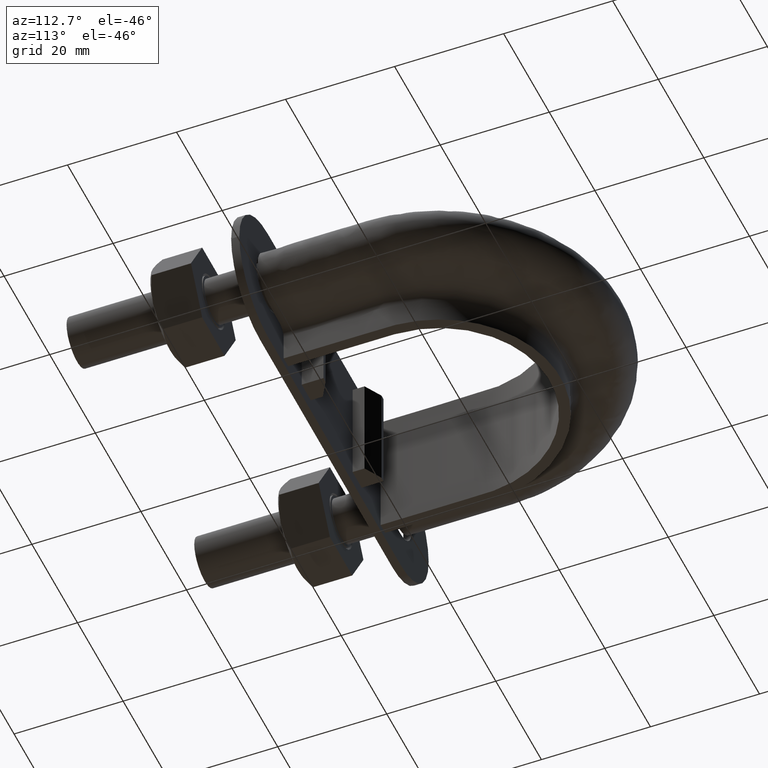
[diagram: clean part render]
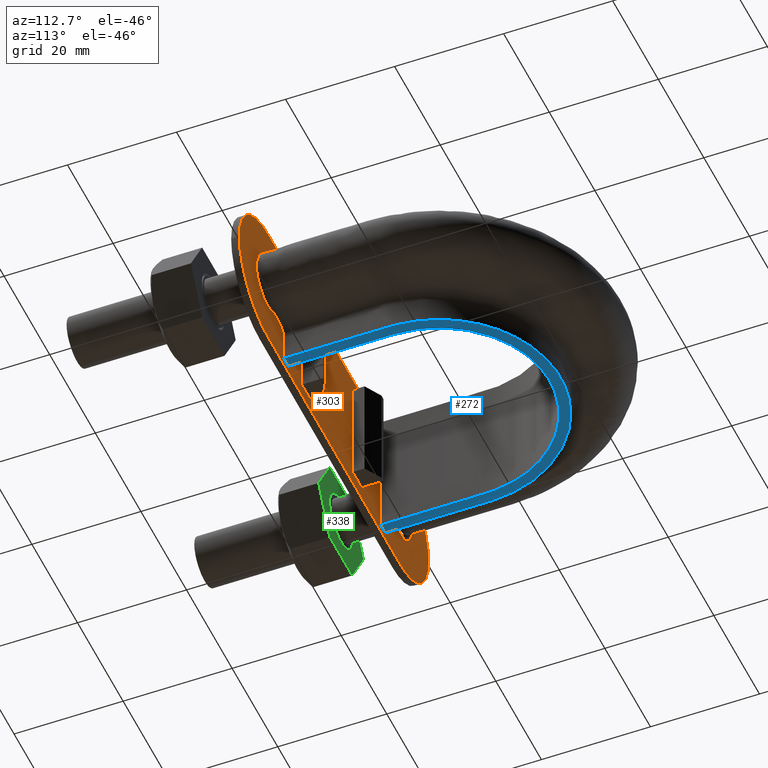
[diagram: same view with three faces highlighted in distinct colors, each labeled with its STEP entity id]
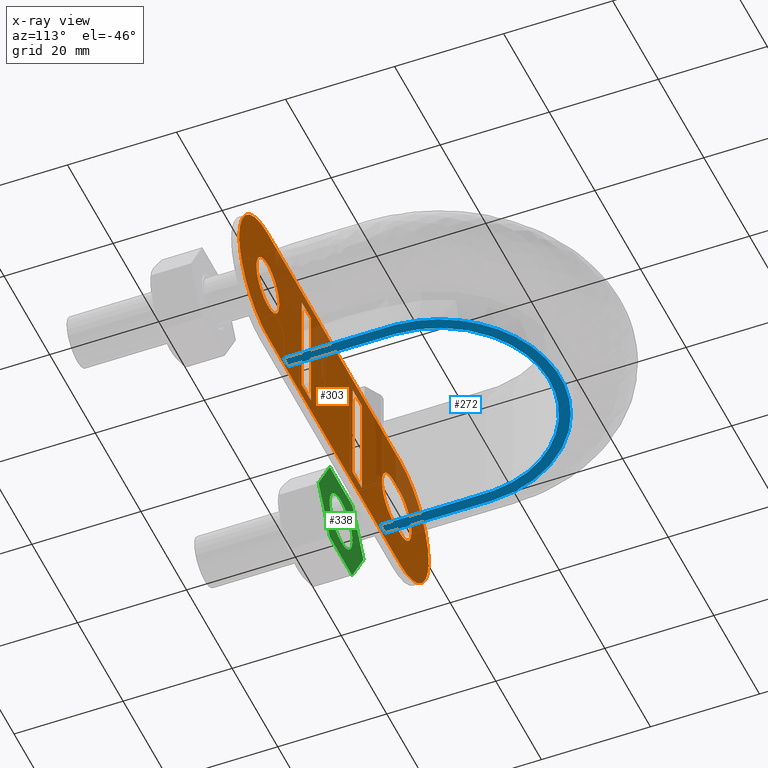
[diagram: x-ray of the same camera — body ghosted, the three highlighted faces saturated]
A machine part, auxiliary view with three faces highlighted in distinct colors.
The next image is the same camera in x-ray (body ghosted, the three faces saturated) — at least one of them is partly hidden behind the body in this view.
Their STEP definitions:

[orange] entity #303 — the highlighted planar face has unit normal (-0, 1, 0).
#303 = ADVANCED_FACE( '', ( #467, #468, #469, #470, #471 ), #472, .T. );
#467 = FACE_BOUND( '', #1549, .T. );
#468 = FACE_OUTER_BOUND( '', #1550, .T. );
#469 = FACE_BOUND( '', #1551, .T. );
#470 = FACE_BOUND( '', #1552, .T. );
#471 = FACE_BOUND( '', #1553, .T. );
#472 = PLANE( '', #1554 );
#1549 = EDGE_LOOP( '', ( #1969, #1970, #1971, #1972 ) );
#1550 = EDGE_LOOP( '', ( #1973, #1974, #1975, #1976, #1977, #1978 ) );
#1551 = EDGE_LOOP( '', ( #1979 ) );
#1552 = EDGE_LOOP( '', ( #1980, #1981, #1982, #1983 ) );
#1553 = EDGE_LOOP( '', ( #1984, #1985, #1986, #1987 ) );
#1554 = AXIS2_PLACEMENT_3D( '', #1988, #1989, #1990 );
#1969 = ORIENTED_EDGE( '', *, *, #2625, .T. );
#1970 = ORIENTED_EDGE( '', *, *, #2626, .T. );
#1971 = ORIENTED_EDGE( '', *, *, #2627, .F. );
#1972 = ORIENTED_EDGE( '', *, *, #2628, .F. );
#1973 = ORIENTED_EDGE( '', *, *, #2612, .T. );
#1974 = ORIENTED_EDGE( '', *, *, #2629, .T. );
#1975 = ORIENTED_EDGE( '', *, *, #2630, .T. );
#1976 = ORIENTED_EDGE( '', *, *, #2631, .T. );
#1977 = ORIENTED_EDGE( '', *, *, #2632, .T. );
#1978 = ORIENTED_EDGE( '', *, *, #2633, .T. );
#1979 = ORIENTED_EDGE( '', *, *, #2634, .F. );
#1980 = ORIENTED_EDGE( '', *, *, #2635, .F. );
#1981 = ORIENTED_EDGE( '', *, *, #2622, .F. );
#1982 = ORIENTED_EDGE( '', *, *, #2636, .F. );
#1983 = ORIENTED_EDGE( '', *, *, #2637, .F. );
#1984 = ORIENTED_EDGE( '', *, *, #2638, .F. );
#1985 = ORIENTED_EDGE( '', *, *, #2639, .T. );
#1986 = ORIENTED_EDGE( '', *, *, #2640, .T. );
#1987 = ORIENTED_EDGE( '', *, *, #2641, .F. );
#1988 = CARTESIAN_POINT( '', ( -29.9999999999918, 34.9999999999981, 3.52518625053271E-007 ) );
#1989 = DIRECTION( '', ( -5.80381248534074E-014, 1.00000000000000, 8.48069738959592E-014 ) );
#1990 = DIRECTION( '', ( 1.17504990182499E-008, -8.48069732139823E-014, 1.00000000000000 ) );
#2612 = EDGE_CURVE( '', #2901, #2902, #2903, .T. );
#2622 = EDGE_CURVE( '', #2917, #2918, #2919, .T. );
#2625 = EDGE_CURVE( '', #2922, #2923, #2924, .T. );
#2626 = EDGE_CURVE( '', #2923, #2925, #2926, .T. );
#2627 = EDGE_CURVE( '', #2927, #2925, #2928, .T. );
#2628 = EDGE_CURVE( '', #2922, #2927, #2929, .T. );
#2629 = EDGE_CURVE( '', #2902, #2930, #2931, .T. );
#2630 = EDGE_CURVE( '', #2930, #2932, #2933, .T. );
#2631 = EDGE_CURVE( '', #2932, #2934, #2935, .T. );
#2632 = EDGE_CURVE( '', #2934, #2936, #2937, .T. );
#2633 = EDGE_CURVE( '', #2936, #2901, #2938, .T. );
#2634 = EDGE_CURVE( '', #2939, #2939, #2940, .T. );
#2635 = EDGE_CURVE( '', #2918, #2941, #2942, .F. );
#2636 = EDGE_CURVE( '', #2943, #2917, #2944, .F. );
#2637 = EDGE_CURVE( '', #2941, #2943, #2945, .T. );
#2638 = EDGE_CURVE( '', #2946, #2947, #2948, .T. );
#2639 = EDGE_CURVE( '', #2946, #2949, #2950, .T. );
#2640 = EDGE_CURVE( '', #2949, #2951, #2952, .T. );
#2641 = EDGE_CURVE( '', #2947, #2951, #2953, .T. );
#2901 = VERTEX_POINT( '', #3549 );
#2902 = VERTEX_POINT( '', #3550 );
#2903 = CIRCLE( '', #3551, 12.5000000000000 );
#2917 = VERTEX_POINT( '', #3574 );
#2918 = VERTEX_POINT( '', #3575 );
#2919 = LINE( '', #3576, #3577 );
#2922 = VERTEX_POINT( '', #3582 );
#2923 = VERTEX_POINT( '', #3583 );
#2924 = LINE( '', #3584, #3585 );
#2925 = VERTEX_POINT( '', #3586 );
#2926 = LINE( '', #3587, #3588 );
#2927 = VERTEX_POINT( '', #3589 );
#2928 = LINE( '', #3590, #3591 );
#2929 = LINE( '', #3592, #3593 );
#2930 = VERTEX_POINT( '', #3594 );
#2931 = LINE( '', #3595, #3596 );
#2932 = VERTEX_POINT( '', #3597 );
#2933 = CIRCLE( '', #3598, 12.5000000000000 );
#2934 = VERTEX_POINT( '', #3599 );
#2935 = CIRCLE( '', #3600, 12.5000000000000 );
#2936 = VERTEX_POINT( '', #3601 );
#2937 = LINE( '', #3602, #3603 );
#2938 = CIRCLE( '', #3604, 12.5000000000000 );
#2939 = VERTEX_POINT( '', #3605 );
#2940 = CIRCLE( '', #3606, 4.99999999999999 );
#2941 = VERTEX_POINT( '', #3607 );
#2942 = CIRCLE( '', #3608, 4.99999999999999 );
#2943 = VERTEX_POINT( '', #3609 );
#2944 = CIRCLE( '', #3610, 4.99999999999999 );
#2945 = LINE( '', #3611, #3612 );
#2946 = VERTEX_POINT( '', #3613 );
#2947 = VERTEX_POINT( '', #3614 );
#2948 = LINE( '', #3615, #3616 );
#2949 = VERTEX_POINT( '', #3617 );
#2950 = LINE( '', #3618, #3619 );
#2951 = VERTEX_POINT( '', #3620 );
#2952 = LINE( '', #3621, #3622 );
#2953 = LINE( '', #3623, #3624 );
#3549 = CARTESIAN_POINT( '', ( -42.4999999999918, 34.9999999999974, 4.99399862781395E-007 ) );
#3550 = CARTESIAN_POINT( '', ( -29.9999998531106, 34.9999999999970, 12.5000003525186 ) );
#3551 = AXIS2_PLACEMENT_3D( '', #4162, #4163, #4164 );
#3574 = CARTESIAN_POINT( '', ( -27.0000000587443, 34.9999999999987, -4.99999968273288 ) );
#3575 = CARTESIAN_POINT( '', ( -30.0000000587443, 34.9999999999985, -4.99999964748139 ) );
#3576 = CARTESIAN_POINT( '', ( -30.0000000587443, 34.9999999999985, -4.99999964748139 ) );
#3577 = VECTOR( '', #4174, 1000.00000000000 );
#3582 = CARTESIAN_POINT( '', ( -13.1500001174968, 34.9999999999999, -9.99999984547729 ) );
#3583 = CARTESIAN_POINT( '', ( -9.15000011749677, 35.0000000000001, -9.99999989247929 ) );
#3584 = CARTESIAN_POINT( '', ( -13.1500001174968, 34.9999999999999, -9.99999984547729 ) );
#3585 = VECTOR( '', #4177, 999.999999999999 );
#3586 = CARTESIAN_POINT( '', ( -9.14999988248680, 34.9999999999985, 10.0000001075207 ) );
#3587 = CARTESIAN_POINT( '', ( -9.15000011749677, 35.0000000000001, -9.99999989247929 ) );
#3588 = VECTOR( '', #4178, 1000.00000000000 );
#3589 = CARTESIAN_POINT( '', ( -13.1499998824868, 34.9999999999982, 10.0000001545227 ) );
#3590 = CARTESIAN_POINT( '', ( -13.1499998824868, 34.9999999999982, 10.0000001545227 ) );
#3591 = VECTOR( '', #4179, 999.999999999999 );
#3592 = CARTESIAN_POINT( '', ( -13.1500001174968, 34.9999999999999, -9.99999984547729 ) );
#3593 = VECTOR( '', #4180, 1000.00000000000 );
#3594 = CARTESIAN_POINT( '', ( 28.0000001468894, 35.0000000000004, 12.4999996709897 ) );
#3595 = CARTESIAN_POINT( '', ( -29.9999998531106, 34.9999999999970, 12.5000003525186 ) );
#3596 = VECTOR( '', #4181, 999.999999999999 );
#3597 = CARTESIAN_POINT( '', ( 40.5000000000082, 35.0000000000022, -4.75891548794454E-007 ) );
#3598 = AXIS2_PLACEMENT_3D( '', #4182, #4183, #4184 );
#3599 = CARTESIAN_POINT( '', ( 27.9999998531269, 35.0000000000025, -12.5000003290103 ) );
#3600 = AXIS2_PLACEMENT_3D( '', #4185, #4186, #4187 );
#3601 = CARTESIAN_POINT( '', ( -30.0000001468730, 34.9999999999991, -12.4999996474814 ) );
#3602 = CARTESIAN_POINT( '', ( 27.9999998531269, 35.0000000000025, -12.5000003290103 ) );
#3603 = VECTOR( '', #4188, 999.999999999999 );
#3604 = AXIS2_PLACEMENT_3D( '', #4189, #4190, #4191 );
#3605 = CARTESIAN_POINT( '', ( 33.0000000000082, 35.0000100000017, -3.87762820034520E-007 ) );
#3606 = AXIS2_PLACEMENT_3D( '', #4192, #4193, #4194 );
#3607 = CARTESIAN_POINT( '', ( -29.9999999412393, 34.9999999999977, 5.00000035251861 ) );
#3608 = AXIS2_PLACEMENT_3D( '', #4195, #4196, #4197 );
#3609 = CARTESIAN_POINT( '', ( -26.9999999412393, 34.9999999999978, 5.00000031726712 ) );
#3610 = AXIS2_PLACEMENT_3D( '', #4198, #4199, #4200 );
#3611 = CARTESIAN_POINT( '', ( -26.9999999412393, 34.9999999999978, 5.00000031726711 ) );
#3612 = VECTOR( '', #4201, 1000.00000000000 );
#3613 = CARTESIAN_POINT( '', ( 9.14999988250342, 35.0000000000012, -10.0000001075134 ) );
#3614 = CARTESIAN_POINT( '', ( 9.15000011751340, 34.9999999999995, 9.99999989248659 ) );
#3615 = CARTESIAN_POINT( '', ( 9.14999988250342, 35.0000000000012, -10.0000001075134 ) );
#3616 = VECTOR( '', #4202, 1000.00000000000 );
#3617 = CARTESIAN_POINT( '', ( 13.1499998825034, 35.0000000000014, -10.0000001545154 ) );
#3618 = CARTESIAN_POINT( '', ( 9.14999988250339, 35.0000000000012, -10.0000001075134 ) );
#3619 = VECTOR( '', #4203, 999.999999999999 );
#3620 = CARTESIAN_POINT( '', ( 13.1500001175134, 34.9999999999998, 9.99999984548459 ) );
#3621 = CARTESIAN_POINT( '', ( 13.1499998825034, 35.0000000000015, -10.0000001545154 ) );
#3622 = VECTOR( '', #4204, 1000.00000000000 );
#3623 = CARTESIAN_POINT( '', ( 9.15000011751337, 34.9999999999995, 9.99999989248659 ) );
#3624 = VECTOR( '', #4205, 999.999999999999 );
#4162 = CARTESIAN_POINT( '', ( -29.9999999999918, 34.9999999999981, 3.52518625053271E-007 ) );
#4163 = DIRECTION( '', ( -5.80381248534074E-014, 1.00000000000000, 8.48069738959592E-014 ) );
#4164 = DIRECTION( '', ( -1.00000000000000, -5.80381258499317E-014, 1.17504988794721E-008 ) );
#4174 = DIRECTION( '', ( -1.00000000000000, -5.80381258499317E-014, 1.17504990182499E-008 ) );
#4177 = DIRECTION( '', ( 1.00000000000000, 5.80381258499317E-014, -1.17504990182499E-008 ) );
#4178 = DIRECTION( '', ( 1.17504988736248E-008, -8.44860165146874E-014, 1.00000000000000 ) );
#4179 = DIRECTION( '', ( 1.00000000000000, 5.80381258499317E-014, -1.17504990182499E-008 ) );
#4180 = DIRECTION( '', ( 1.17504988736248E-008, -8.44860165146874E-014, 1.00000000000000 ) );
#4181 = DIRECTION( '', ( 1.00000000000000, 5.80381258499317E-014, -1.17504990182499E-008 ) );
#4182 = CARTESIAN_POINT( '', ( 28.0000000000082, 35.0000000000015, -3.29010318005224E-007 ) );
#4183 = DIRECTION( '', ( -5.80381248534074E-014, 1.00000000000000, 8.48069738959592E-014 ) );
#4184 = DIRECTION( '', ( 1.17504984631384E-008, -8.48069732139823E-014, 1.00000000000000 ) );
#4185 = CARTESIAN_POINT( '', ( 28.0000000000082, 35.0000000000015, -3.29010314535777E-007 ) );
#4186 = DIRECTION( '', ( -5.80381248534074E-014, 1.00000000000000, 8.48069738959592E-014 ) );
#4187 = DIRECTION( '', ( 1.00000000000000, 5.80381258499317E-014, -1.17504988794721E-008 ) );
#4188 = DIRECTION( '', ( -1.00000000000000, -5.80381258499317E-014, 1.17504990182499E-008 ) );
#4189 = CARTESIAN_POINT( '', ( -29.9999999999918, 34.9999999999981, 3.52518628522718E-007 ) );
#4190 = DIRECTION( '', ( -5.80381248534074E-014, 1.00000000000000, 8.48069738959592E-014 ) );
#4191 = DIRECTION( '', ( -1.17504987406942E-008, 8.48069732139823E-014, -1.00000000000000 ) );
#4192 = CARTESIAN_POINT( '', ( 28.0000000000082, 35.0000100000014, -3.29010324943270E-007 ) );
#4193 = DIRECTION( '', ( -5.80381248534074E-014, 1.00000000000000, 8.48069738959592E-014 ) );
#4194 = DIRECTION( '', ( 1.00000000000000, 5.80381258499317E-014, -1.17504990182499E-008 ) );
#4195 = CARTESIAN_POINT( '', ( -29.9999999999918, 34.9999999999981, 3.52518612910207E-007 ) );
#4196 = DIRECTION( '', ( 5.80381248534074E-014, -1.00000000000000, -8.48069738959592E-014 ) );
#4197 = DIRECTION( '', ( -1.00000000000000, -5.80381258499317E-014, 1.17504990182499E-008 ) );
#4198 = CARTESIAN_POINT( '', ( -26.9999999999918, 34.9999999999983, 3.17267115855457E-007 ) );
#4199 = DIRECTION( '', ( 5.80381248534074E-014, -1.00000000000000, -8.48069738959592E-014 ) );
#4200 = DIRECTION( '', ( -1.00000000000000, -5.80381258499317E-014, 1.17504990182499E-008 ) );
#4201 = DIRECTION( '', ( 1.00000000000000, 5.80381258499317E-014, -1.17504990182499E-008 ) );
#4202 = DIRECTION( '', ( 1.17504988736248E-008, -8.44860165146874E-014, 1.00000000000000 ) );
#4203 = DIRECTION( '', ( 1.00000000000000, 5.80381258499317E-014, -1.17504990182499E-008 ) );
#4204 = DIRECTION( '', ( 1.17504988736248E-008, -8.44860165146874E-014, 1.00000000000000 ) );
#4205 = DIRECTION( '', ( 1.00000000000000, 5.80381258499317E-014, -1.17504990182499E-008 ) );

[blue] entity #272 — the highlighted planar face has unit normal (0, 0, 1).
#272 = ADVANCED_FACE( '', ( #393 ), #394, .F. );
#393 = FACE_OUTER_BOUND( '', #1177, .T. );
#394 = PLANE( '', #1178 );
#1177 = EDGE_LOOP( '', ( #1769, #1770, #1771, #1772 ) );
#1178 = AXIS2_PLACEMENT_3D( '', #1773, #1774, #1775 );
#1769 = ORIENTED_EDGE( '', *, *, #2555, .F. );
#1770 = ORIENTED_EDGE( '', *, *, #2549, .F. );
#1771 = ORIENTED_EDGE( '', *, *, #2558, .T. );
#1772 = ORIENTED_EDGE( '', *, *, #2553, .F. );
#1773 = CARTESIAN_POINT( '', ( 40.0000000000000, 95.5000000000000, -12.5000000000000 ) );
#1774 = DIRECTION( '', ( 0.000000000000000, 0.000000000000000, 1.00000000000000 ) );
#1775 = DIRECTION( '', ( 1.22460635382238E-016, 1.00000000000000, 0.000000000000000 ) );
#2549 = EDGE_CURVE( '', #2792, #2788, #2794, .T. );
#2553 = EDGE_CURVE( '', #2800, #2802, #2803, .T. );
#2555 = EDGE_CURVE( '', #2788, #2800, #2805, .F. );
#2558 = EDGE_CURVE( '', #2792, #2802, #2808, .T. );
#2788 = VERTEX_POINT( '', #3195 );
#2792 = VERTEX_POINT( '', #3201 );
#2794 = LINE( '', #3233, #3234 );
#2800 = VERTEX_POINT( '', #3250 );
#2802 = VERTEX_POINT( '', #3253 );
#2803 = LINE( '', #3254, #3255 );
#2805 = B_SPLINE_CURVE_WITH_KNOTS( '', 3, ( #3287, #3288, #3289, #3290, #3291, #3292, #3293, #3294, #3295, #3296, #3297, #3298, #3299, #3300, #3301, #3302, #3303 ), .UNSPECIFIED., .F., .F., ( 4, 3, 1, 1, 1, 1, 1, 1, 1, 3, 4 ), ( -7.83333333333333, -7.00000000000000, -6.50000000000000, -6.00000000000000, -5.00000000000000, -4.00000000000000, -3.00000000000000, -2.00000000000000, -1.50000000000000, -1.00000000000000, -0.166666666666667 ), .UNSPECIFIED. );
#2808 = B_SPLINE_CURVE_WITH_KNOTS( '', 3, ( #3386, #3387, #3388, #3389, #3390, #3391, #3392, #3393, #3394, #3395, #3396, #3397, #3398, #3399, #3400, #3401, #3402 ), .UNSPECIFIED., .F., .F., ( 4, 3, 1, 1, 1, 1, 1, 1, 1, 3, 4 ), ( 0.166666666666666, 1.00000000000000, 1.50000000000000, 2.00000000000000, 3.00000000000000, 4.00000000000000, 5.00000000000000, 6.00000000000000, 6.50000000000000, 7.00000000000000, 7.83333333333333 ), .UNSPECIFIED. );
#3195 = CARTESIAN_POINT( '', ( -20.2500000000000, 35.5000000000000, -12.5000000000000 ) );
#3201 = CARTESIAN_POINT( '', ( -22.2500000000000, 35.5000000000000, -12.5000000000000 ) );
#3233 = CARTESIAN_POINT( '', ( -40.0000000000000, 35.5000000000000, -12.5000000000000 ) );
#3234 = VECTOR( '', #4065, 1000.00000000000 );
#3250 = CARTESIAN_POINT( '', ( 20.2500000000000, 35.5000000000000, -12.5000000000000 ) );
#3253 = CARTESIAN_POINT( '', ( 22.2500000000000, 35.5000000000000, -12.5000000000000 ) );
#3254 = CARTESIAN_POINT( '', ( -40.0000000000000, 35.5000000000000, -12.5000000000000 ) );
#3255 = VECTOR( '', #4068, 1000.00000000000 );
#3287 = CARTESIAN_POINT( '', ( 20.2500000000000, 35.5000000000000, -12.5000000000000 ) );
#3288 = CARTESIAN_POINT( '', ( 20.2500000000000, 41.9166666666667, -12.5000000000000 ) );
#3289 = CARTESIAN_POINT( '', ( 20.2500000000000, 48.3333333333333, -12.5000000000000 ) );
#3290 = CARTESIAN_POINT( '', ( 20.2500000000000, 54.7500000000000, -12.5000000000000 ) );
#3291 = CARTESIAN_POINT( '', ( 20.2500000000000, 56.5002047421711, -12.5000000000000 ) );
#3292 = CARTESIAN_POINT( '', ( 19.7738637323347, 60.0557092346270, -12.5000000000000 ) );
#3293 = CARTESIAN_POINT( '', ( 17.0653458001161, 66.6375863532928, -12.5000000000000 ) );
#3294 = CARTESIAN_POINT( '', ( 10.5977855368055, 73.1081766472297, -12.5000000000000 ) );
#3295 = CARTESIAN_POINT( '', ( 1.62392785024807E-014, 75.9459116763852, -12.5000000000000 ) );
#3296 = CARTESIAN_POINT( '', ( -10.5977855368054, 73.1081766472297, -12.5000000000000 ) );
#3297 = CARTESIAN_POINT( '', ( -17.0653458001160, 66.6375863532928, -12.5000000000000 ) );
#3298 = CARTESIAN_POINT( '', ( -19.7738637323346, 60.0557092346270, -12.5000000000000 ) );
#3299 = CARTESIAN_POINT( '', ( -20.2500000000000, 56.5002047421711, -12.5000000000000 ) );
#3300 = CARTESIAN_POINT( '', ( -20.2500000000000, 54.7500000000000, -12.5000000000000 ) );
#3301 = CARTESIAN_POINT( '', ( -20.2500000000000, 48.3333333333333, -12.5000000000000 ) );
#3302 = CARTESIAN_POINT( '', ( -20.2500000000000, 41.9166666666667, -12.5000000000000 ) );
#3303 = CARTESIAN_POINT( '', ( -20.2500000000000, 35.5000000000000, -12.5000000000000 ) );
#3386 = CARTESIAN_POINT( '', ( -22.2500000000000, 35.5000000000000, -12.5000000000000 ) );
#3387 = CARTESIAN_POINT( '', ( -22.2500000000000, 41.9166666666667, -12.5000000000000 ) );
#3388 = CARTESIAN_POINT( '', ( -22.2500000000000, 48.3333333333333, -12.5000000000000 ) );
#3389 = CARTESIAN_POINT( '', ( -22.2500000000000, 54.7500000000000, -12.5000000000000 ) );
#3390 = CARTESIAN_POINT( '', ( -22.2500000000000, 56.6788375371252, -12.5000000000000 ) );
#3391 = CARTESIAN_POINT( '', ( -21.7278496244525, 60.5773895528793, -12.5000000000000 ) );
#3392 = CARTESIAN_POINT( '', ( -18.7502295601520, 67.8130238937638, -12.5000000000000 ) );
#3393 = CARTESIAN_POINT( '', ( -11.6446643494257, 74.9208371917291, -12.5000000000000 ) );
#3394 = CARTESIAN_POINT( '', ( 1.82303941035983E-014, 78.0395814041355, -12.5000000000000 ) );
#3395 = CARTESIAN_POINT( '', ( 11.6446643494257, 74.9208371917290, -12.5000000000000 ) );
#3396 = CARTESIAN_POINT( '', ( 18.7502295601521, 67.8130238937639, -12.5000000000000 ) );
#3397 = CARTESIAN_POINT( '', ( 21.7278496244525, 60.5773895528793, -12.5000000000000 ) );
#3398 = CARTESIAN_POINT( '', ( 22.2500000000000, 56.6788375371252, -12.5000000000000 ) );
#3399 = CARTESIAN_POINT( '', ( 22.2500000000000, 54.7500000000000, -12.5000000000000 ) );
#3400 = CARTESIAN_POINT( '', ( 22.2500000000000, 48.3333333333333, -12.5000000000000 ) );
#3401 = CARTESIAN_POINT( '', ( 22.2500000000000, 41.9166666666667, -12.5000000000000 ) );
#3402 = CARTESIAN_POINT( '', ( 22.2500000000000, 35.5000000000000, -12.5000000000000 ) );
#4065 = DIRECTION( '', ( 1.00000000000000, -1.22460635382238E-016, 0.000000000000000 ) );
#4068 = DIRECTION( '', ( 1.00000000000000, -1.22460635382238E-016, 0.000000000000000 ) );

[green] entity #338 — the highlighted planar face has unit normal (-0, -1, -0).
#338 = ADVANCED_FACE( '', ( #545, #546 ), #547, .F. );
#545 = FACE_BOUND( '', #1627, .T. );
#546 = FACE_OUTER_BOUND( '', #1628, .T. );
#547 = PLANE( '', #1629 );
#1627 = EDGE_LOOP( '', ( #2231 ) );
#1628 = EDGE_LOOP( '', ( #2232, #2233, #2234, #2235, #2236, #2237, #2238, #2239, #2240, #2241, #2242, #2243 ) );
#1629 = AXIS2_PLACEMENT_3D( '', #2244, #2245, #2246 );
#2231 = ORIENTED_EDGE( '', *, *, #2697, .F. );
#2232 = ORIENTED_EDGE( '', *, *, #2698, .T. );
#2233 = ORIENTED_EDGE( '', *, *, #2699, .T. );
#2234 = ORIENTED_EDGE( '', *, *, #2700, .T. );
#2235 = ORIENTED_EDGE( '', *, *, #2693, .T. );
#2236 = ORIENTED_EDGE( '', *, *, #2701, .T. );
#2237 = ORIENTED_EDGE( '', *, *, #2702, .T. );
#2238 = ORIENTED_EDGE( '', *, *, #2703, .T. );
#2239 = ORIENTED_EDGE( '', *, *, #2704, .T. );
#2240 = ORIENTED_EDGE( '', *, *, #2705, .T. );
#2241 = ORIENTED_EDGE( '', *, *, #2706, .T. );
#2242 = ORIENTED_EDGE( '', *, *, #2707, .T. );
#2243 = ORIENTED_EDGE( '', *, *, #2708, .T. );
#2244 = CARTESIAN_POINT( '', ( -18.2000000000008, 25.0000000000000, -1.15154882705277E-007 ) );
#2245 = DIRECTION( '', ( -1.22460635382238E-016, -1.00000000000000, -1.83690953073357E-016 ) );
#2246 = DIRECTION( '', ( -1.17504990182597E-008, 1.83690954512330E-016, -1.00000000000000 ) );
#2693 = EDGE_CURVE( '', #3034, #3032, #3035, .T. );
#2697 = EDGE_CURVE( '', #3040, #3040, #3041, .T. );
#2698 = EDGE_CURVE( '', #3042, #3043, #3044, .T. );
#2699 = EDGE_CURVE( '', #3043, #3045, #3046, .T. );
#2700 = EDGE_CURVE( '', #3045, #3034, #3047, .T. );
#2701 = EDGE_CURVE( '', #3032, #3048, #3049, .T. );
#2702 = EDGE_CURVE( '', #3048, #3050, #3051, .T. );
#2703 = EDGE_CURVE( '', #3050, #3052, #3053, .T. );
#2704 = EDGE_CURVE( '', #3052, #3054, #3055, .T. );
#2705 = EDGE_CURVE( '', #3054, #3056, #3057, .T. );
#2706 = EDGE_CURVE( '', #3056, #3058, #3059, .T. );
#2707 = EDGE_CURVE( '', #3058, #3060, #3061, .T. );
#2708 = EDGE_CURVE( '', #3060, #3042, #3062, .T. );
#3032 = VERTEX_POINT( '', #3757 );
#3034 = VERTEX_POINT( '', #3760 );
#3035 = LINE( '', #3761, #3762 );
#3040 = VERTEX_POINT( '', #3775 );
#3041 = CIRCLE( '', #3776, 5.00000000000000 );
#3042 = VERTEX_POINT( '', #3777 );
#3043 = VERTEX_POINT( '', #3778 );
#3044 = CIRCLE( '', #3779, 9.80000000000000 );
#3045 = VERTEX_POINT( '', #3780 );
#3046 = LINE( '', #3781, #3782 );
#3047 = CIRCLE( '', #3783, 9.80000000000000 );
#3048 = VERTEX_POINT( '', #3784 );
#3049 = CIRCLE( '', #3785, 9.80000000000000 );
#3050 = VERTEX_POINT( '', #3786 );
#3051 = LINE( '', #3787, #3788 );
#3052 = VERTEX_POINT( '', #3789 );
#3053 = CIRCLE( '', #3790, 9.80000000000000 );
#3054 = VERTEX_POINT( '', #3791 );
#3055 = LINE( '', #3792, #3793 );
#3056 = VERTEX_POINT( '', #3794 );
#3057 = CIRCLE( '', #3795, 9.80000000000000 );
#3058 = VERTEX_POINT( '', #3796 );
#3059 = LINE( '', #3797, #3798 );
#3060 = VERTEX_POINT( '', #3799 );
#3061 = CIRCLE( '', #3800, 9.80000000000000 );
#3062 = LINE( '', #3801, #3802 );
#3757 = CARTESIAN_POINT( '', ( -37.7999656121234, 25.0000000000000, -0.0259615327468876 ) );
#3760 = CARTESIAN_POINT( '', ( -32.9224663520900, 25.0000000000000, -8.47403829425718 ) );
#3761 = CARTESIAN_POINT( '', ( -32.9112160319705, 25.0000000000000, -8.49352442083451 ) );
#3762 = VECTOR( '', #4274, 1000.00000000004 );
#3775 = CARTESIAN_POINT( '', ( -27.9999999412475, 25.0000000000000, 5.00000000000001 ) );
#3776 = AXIS2_PLACEMENT_3D( '', #4279, #4280, #4281 );
#3777 = CARTESIAN_POINT( '', ( -23.0775338470583, 25.0000000000000, -8.47403840994005 ) );
#3778 = CARTESIAN_POINT( '', ( -23.1225007405768, 25.0000000000000, -8.50000005731305 ) );
#3779 = AXIS2_PLACEMENT_3D( '', #4282, #4283, #4284 );
#3780 = CARTESIAN_POINT( '', ( -32.8774994591817, 25.0000000000000, -8.49999994268694 ) );
#3781 = CARTESIAN_POINT( '', ( -18.2000000998801, 25.0000000000000, -8.50000011515488 ) );
#3782 = VECTOR( '', #4285, 999.999999999972 );
#3783 = AXIS2_PLACEMENT_3D( '', #4286, #4287, #4288 );
#3784 = CARTESIAN_POINT( '', ( -37.7999656115133, 25.0000000000000, 0.0259617630558752 ) );
#3785 = AXIS2_PLACEMENT_3D( '', #4289, #4290, #4291 );
#3786 = CARTESIAN_POINT( '', ( -32.9224661529417, 25.0000000000000, 8.47403840994006 ) );
#3787 = CARTESIAN_POINT( '', ( -32.9112158323642, 25.0000000000000, 8.49352453625300 ) );
#3788 = VECTOR( '', #4292, 1000.00000000004 );
#3789 = CARTESIAN_POINT( '', ( -32.8774992594232, 25.0000000000000, 8.50000005731306 ) );
#3790 = AXIS2_PLACEMENT_3D( '', #4293, #4294, #4295 );
#3791 = CARTESIAN_POINT( '', ( -23.1225005408183, 25.0000000000000, 8.49999994268696 ) );
#3792 = CARTESIAN_POINT( '', ( -18.1999999001216, 25.0000000000000, 8.49999988484512 ) );
#3793 = VECTOR( '', #4296, 999.999999999972 );
#3794 = CARTESIAN_POINT( '', ( -23.0775336479099, 25.0000000000000, 8.47403829425719 ) );
#3795 = AXIS2_PLACEMENT_3D( '', #4297, #4298, #4299 );
#3796 = CARTESIAN_POINT( '', ( -18.2000343878766, 25.0000000000000, 0.0259615327468994 ) );
#3797 = CARTESIAN_POINT( '', ( -18.1887840677570, 25.0000000000000, 0.00647540616957391 ) );
#3798 = VECTOR( '', #4300, 1000.00000000004 );
#3799 = CARTESIAN_POINT( '', ( -18.2000343884867, 25.0000000000000, -0.0259617630558573 ) );
#3800 = AXIS2_PLACEMENT_3D( '', #4301, #4302, #4303 );
#3801 = CARTESIAN_POINT( '', ( -18.1887840679092, 25.0000000000000, -0.00647563674292520 ) );
#3802 = VECTOR( '', #4304, 1000.00000000004 );
#4274 = DIRECTION( '', ( -0.499999989823738, -9.78507164412083E-017, 0.866025409659706 ) );
#4279 = CARTESIAN_POINT( '', ( -28.0000000000000, 25.0000000000000, 7.67365771620059E-015 ) );
#4280 = DIRECTION( '', ( 1.22460635382238E-016, 1.00000000000000, 1.83690953073357E-016 ) );
#4281 = DIRECTION( '', ( 1.17504990182597E-008, -1.83690954512330E-016, 1.00000000000000 ) );
#4282 = CARTESIAN_POINT( '', ( -28.0000000000000, 25.0000000000000, 7.67365771620059E-015 ) );
#4283 = DIRECTION( '', ( 1.22460635382238E-016, 1.00000000000000, 1.83690953073357E-016 ) );
#4284 = DIRECTION( '', ( 1.17504990182597E-008, -1.83690954512330E-016, 1.00000000000000 ) );
#4285 = DIRECTION( '', ( -1.00000000000000, 1.22460633223777E-016, 1.17504990182597E-008 ) );
#4286 = CARTESIAN_POINT( '', ( -28.0000000000000, 25.0000000000000, 7.67365771620059E-015 ) );
#4287 = DIRECTION( '', ( 1.22460635382238E-016, 1.00000000000000, 1.83690953073357E-016 ) );
#4288 = DIRECTION( '', ( 1.17504990182597E-008, -1.83690954512330E-016, 1.00000000000000 ) );
#4289 = CARTESIAN_POINT( '', ( -28.0000000000000, 25.0000000000000, 7.67365771620059E-015 ) );
#4290 = DIRECTION( '', ( 1.22460635382238E-016, 1.00000000000000, 1.83690953073357E-016 ) );
#4291 = DIRECTION( '', ( 1.17504990182597E-008, -1.83690954512330E-016, 1.00000000000000 ) );
#4292 = DIRECTION( '', ( 0.500000010176199, -2.20311349664978E-016, 0.866025397909207 ) );
#4293 = CARTESIAN_POINT( '', ( -28.0000000000000, 25.0000000000000, 7.67365771620059E-015 ) );
#4294 = DIRECTION( '', ( 1.22460635382238E-016, 1.00000000000000, 1.83690953073357E-016 ) );
#4295 = DIRECTION( '', ( 1.17504990182597E-008, -1.83690954512330E-016, 1.00000000000000 ) );
#4296 = DIRECTION( '', ( 1.00000000000000, -1.22460633223777E-016, -1.17504990182597E-008 ) );
#4297 = CARTESIAN_POINT( '', ( -28.0000000000000, 25.0000000000000, 7.67365771620059E-015 ) );
#4298 = DIRECTION( '', ( 1.22460635382238E-016, 1.00000000000000, 1.83690953073357E-016 ) );
#4299 = DIRECTION( '', ( 1.17504990182597E-008, -1.83690954512330E-016, 1.00000000000000 ) );
#4300 = DIRECTION( '', ( 0.499999989823738, 9.78507164412083E-017, -0.866025409659706 ) );
#4301 = CARTESIAN_POINT( '', ( -28.0000000000000, 25.0000000000000, 7.67365771620059E-015 ) );
#4302 = DIRECTION( '', ( 1.22460635382238E-016, 1.00000000000000, 1.83690953073357E-016 ) );
#4303 = DIRECTION( '', ( 1.17504990182597E-008, -1.83690954512330E-016, 1.00000000000000 ) );
#4304 = DIRECTION( '', ( -0.500000010176199, 2.20311349664978E-016, -0.866025397909207 ) );